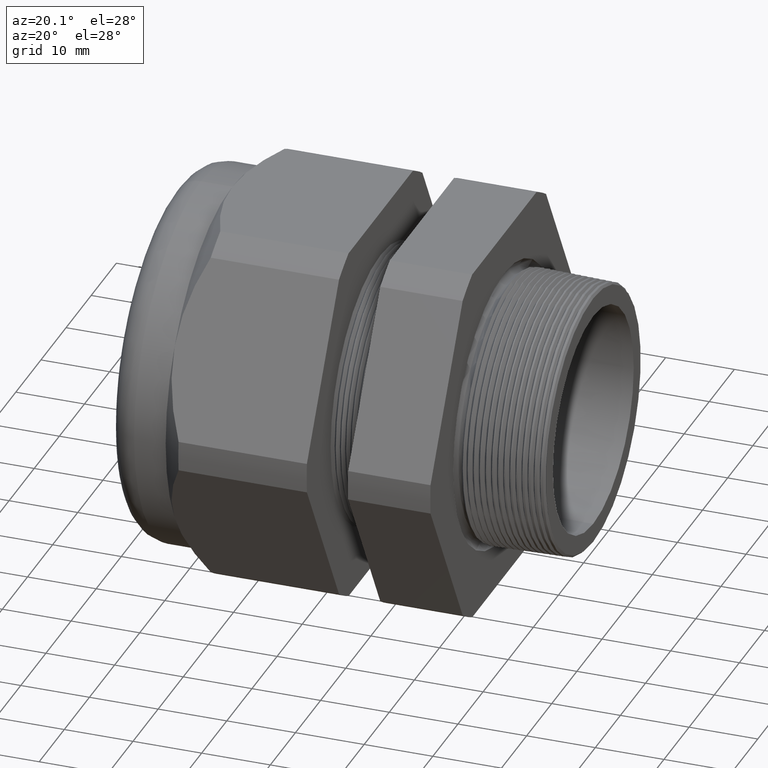
[diagram: clean part render]
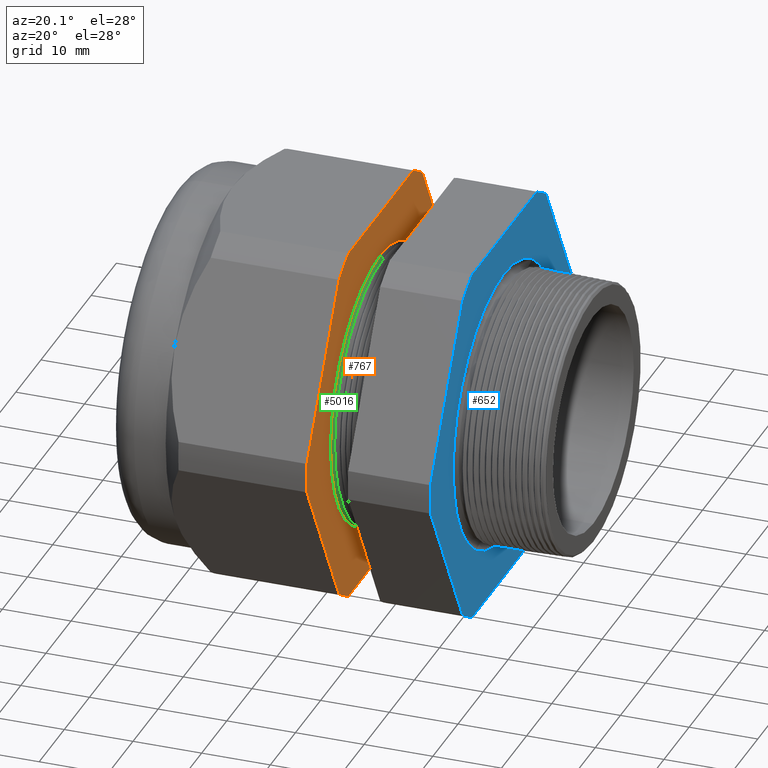
[diagram: same view with three faces highlighted in distinct colors, each labeled with its STEP entity id]
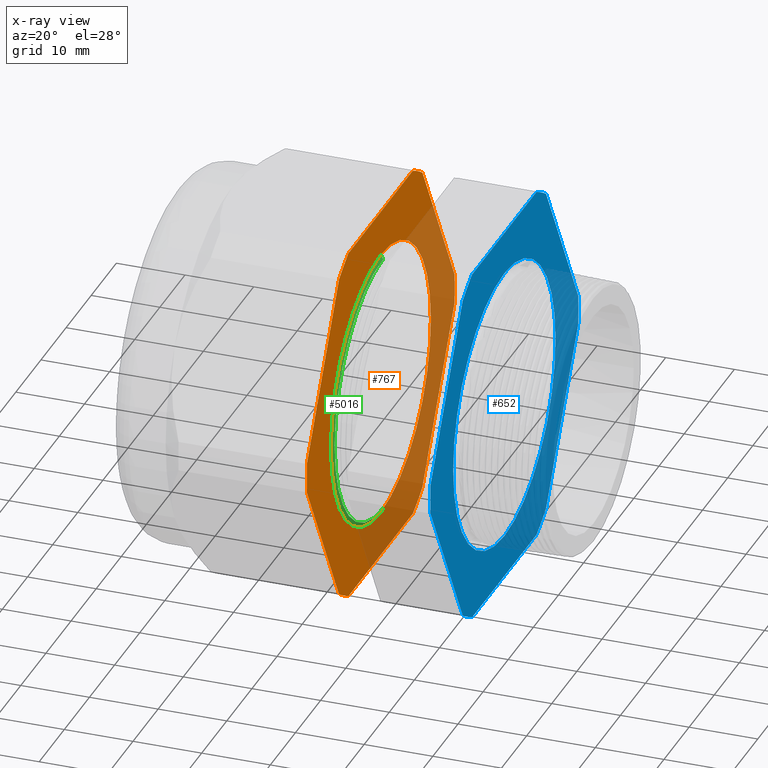
[diagram: x-ray of the same camera — body ghosted, the three highlighted faces saturated]
A machine part, auxiliary view with three faces highlighted in distinct colors.
The next image is the same camera in x-ray (body ghosted, the three faces saturated) — at least one of them is partly hidden behind the body in this view.
Their STEP definitions:

[orange] entity #767 — the highlighted planar face has unit normal (1, 0, 0).
#659 = EDGE_CURVE ( 'NONE', #673, #684, #2069, .T. ) ;
#665 = EDGE_CURVE ( 'NONE', #5097, #5134, #2097, .T. ) ;
#673 = VERTEX_POINT ( 'NONE', #2130 ) ;
#681 = EDGE_CURVE ( 'NONE', #684, #5097, #2103, .T. ) ;
#684 = VERTEX_POINT ( 'NONE', #2098 ) ;
#763 = EDGE_LOOP ( 'NONE', ( #4890, #4888 ) ) ;
#767 = ADVANCED_FACE ( 'NONE', ( #2319, #2318 ), #2324, .T. ) ;
#785 = EDGE_CURVE ( 'NONE', #5306, #673, #2347, .T. ) ;
#2066 = DIRECTION ( 'NONE',  ( 0.0000000000000000000, -0.5000000000000001100, 0.8660254037844384900 ) ) ;
#2067 = VECTOR ( 'NONE', #2066, 39.37007874015748900 ) ;
#2068 = CARTESIAN_POINT ( 'NONE',  ( -1.018802799999999800, 1.101246546954738800, 0.1825850290146080200 ) ) ;
#2069 = LINE ( 'NONE', #2068, #2067 ) ;
#2094 = DIRECTION ( 'NONE',  ( 0.0000000000000000000, -1.000000000000000000, 0.0000000000000000000 ) ) ;
#2095 = VECTOR ( 'NONE', #2094, 39.37007874015748100 ) ;
#2096 = CARTESIAN_POINT ( 'NONE',  ( -1.018802799999999800, 0.7850000000000001400, 1.044999999999999700 ) ) ;
#2097 = LINE ( 'NONE', #2096, #2095 ) ;
#2098 = CARTESIAN_POINT ( 'NONE',  ( -1.018802799999999800, 0.6532729870224193200, 0.9584979952648862200 ) ) ;
#2099 = DIRECTION ( 'NONE',  ( 0.0000000000000000000, 0.0000000000000000000, -1.000000000000000000 ) ) ;
#2100 = DIRECTION ( 'NONE',  ( 1.000000000000000000, 0.0000000000000000000, 0.0000000000000000000 ) ) ;
#2101 = CARTESIAN_POINT ( 'NONE',  ( -1.018802799999999800, 0.0000000000000000000, 0.0000000000000000000 ) ) ;
#2102 = AXIS2_PLACEMENT_3D ( 'NONE', #2101, #2100, #2099 ) ;
#2103 = CIRCLE ( 'NONE', #2102, 1.159950000000000000 ) ;
#2130 = CARTESIAN_POINT ( 'NONE',  ( -1.018802799999999800, 1.156720106887057600, 0.08650200473511426800 ) ) ;
#2314 = DIRECTION ( 'NONE',  ( 0.0000000000000000000, 0.0000000000000000000, -1.000000000000000000 ) ) ;
#2315 = DIRECTION ( 'NONE',  ( 1.000000000000000000, 0.0000000000000000000, 0.0000000000000000000 ) ) ;
#2316 = CARTESIAN_POINT ( 'NONE',  ( -1.018802799999999800, 0.7850000000000001400, 0.0000000000000000000 ) ) ;
#2317 = AXIS2_PLACEMENT_3D ( 'NONE', #2316, #2315, #2314 ) ;
#2318 = FACE_OUTER_BOUND ( 'NONE', #4903, .T. ) ;
#2319 = FACE_BOUND ( 'NONE', #763, .T. ) ;
#2324 = PLANE ( 'NONE',  #2317 ) ;
#2343 = DIRECTION ( 'NONE',  ( 0.0000000000000000000, 0.0000000000000000000, -1.000000000000000000 ) ) ;
#2344 = DIRECTION ( 'NONE',  ( 1.000000000000000000, 0.0000000000000000000, 0.0000000000000000000 ) ) ;
#2345 = CARTESIAN_POINT ( 'NONE',  ( -1.018802799999999800, 0.0000000000000000000, 0.0000000000000000000 ) ) ;
#2346 = AXIS2_PLACEMENT_3D ( 'NONE', #2345, #2344, #2343 ) ;
#2347 = CIRCLE ( 'NONE', #2346, 1.159950000000000000 ) ;
#2942 = CARTESIAN_POINT ( 'NONE',  ( -1.018802799999999800, 0.0000000000000000000, 0.0000000000000000000 ) ) ;
#2943 = AXIS2_PLACEMENT_3D ( 'NONE', #2942, #3203, #3453 ) ;
#3045 = CARTESIAN_POINT ( 'NONE',  ( -1.018802799999999800, 9.613477373306724800E-017, -0.7850000000000001400 ) ) ;
#3047 = DIRECTION ( 'NONE',  ( 0.0000000000000000000, 0.0000000000000000000, -1.000000000000000000 ) ) ;
#3048 = DIRECTION ( 'NONE',  ( 1.000000000000000000, 0.0000000000000000000, 0.0000000000000000000 ) ) ;
#3049 = CARTESIAN_POINT ( 'NONE',  ( -1.018802799999999800, 0.0000000000000000000, 0.0000000000000000000 ) ) ;
#3050 = AXIS2_PLACEMENT_3D ( 'NONE', #3049, #3048, #3047 ) ;
#3051 = CIRCLE ( 'NONE', #3050, 0.7850000000000001400 ) ;
#3052 = CARTESIAN_POINT ( 'NONE',  ( -1.018802799999999800, 0.0000000000000000000, 0.7850000000000001400 ) ) ;
#3098 = DIRECTION ( 'NONE',  ( 0.0000000000000000000, 0.0000000000000000000, -1.000000000000000000 ) ) ;
#3099 = DIRECTION ( 'NONE',  ( 1.000000000000000000, 0.0000000000000000000, 0.0000000000000000000 ) ) ;
#3100 = AXIS2_PLACEMENT_3D ( 'NONE', #3108, #3099, #3098 ) ;
#3101 = CIRCLE ( 'NONE', #3100, 0.7850000000000001400 ) ;
#3108 = CARTESIAN_POINT ( 'NONE',  ( -1.018802799999999800, 0.0000000000000000000, 0.0000000000000000000 ) ) ;
#3203 = DIRECTION ( 'NONE',  ( 1.000000000000000000, 0.0000000000000000000, 0.0000000000000000000 ) ) ;
#3271 = DIRECTION ( 'NONE',  ( 0.0000000000000000000, 1.000000000000000000, 0.0000000000000000000 ) ) ;
#3272 = VECTOR ( 'NONE', #3271, 39.37007874015748100 ) ;
#3273 = CARTESIAN_POINT ( 'NONE',  ( -1.018802799999999800, 0.7850000000000001400, -1.045000000000000200 ) ) ;
#3277 = LINE ( 'NONE', #3273, #3272 ) ;
#3306 = CARTESIAN_POINT ( 'NONE',  ( -1.018802799999999800, -1.156720106887057800, -0.08650200473511342200 ) ) ;
#3335 = CARTESIAN_POINT ( 'NONE',  ( -1.018802799999999800, -1.156720106887058100, 0.08650200473511256100 ) ) ;
#3341 = DIRECTION ( 'NONE',  ( 0.0000000000000000000, 0.0000000000000000000, -1.000000000000000000 ) ) ;
#3342 = DIRECTION ( 'NONE',  ( 1.000000000000000000, 0.0000000000000000000, 0.0000000000000000000 ) ) ;
#3343 = CARTESIAN_POINT ( 'NONE',  ( -1.018802799999999800, 0.0000000000000000000, 0.0000000000000000000 ) ) ;
#3344 = AXIS2_PLACEMENT_3D ( 'NONE', #3343, #3342, #3341 ) ;
#3345 = CIRCLE ( 'NONE', #3344, 1.159950000000000000 ) ;
#3346 = DIRECTION ( 'NONE',  ( 0.0000000000000000000, 0.0000000000000000000, -1.000000000000000000 ) ) ;
#3347 = DIRECTION ( 'NONE',  ( 1.000000000000000000, 0.0000000000000000000, 0.0000000000000000000 ) ) ;
#3348 = CARTESIAN_POINT ( 'NONE',  ( -1.018802799999999800, 0.0000000000000000000, 0.0000000000000000000 ) ) ;
#3349 = AXIS2_PLACEMENT_3D ( 'NONE', #3348, #3347, #3346 ) ;
#3350 = CIRCLE ( 'NONE', #3349, 1.159950000000000000 ) ;
#3367 = DIRECTION ( 'NONE',  ( 0.0000000000000000000, -0.4999999999999995600, -0.8660254037844388200 ) ) ;
#3368 = VECTOR ( 'NONE', #3367, 39.37007874015748900 ) ;
#3369 = CARTESIAN_POINT ( 'NONE',  ( -1.018802799999999800, -0.7087465469547389300, 0.8624149709853915500 ) ) ;
#3370 = LINE ( 'NONE', #3369, #3368 ) ;
#3371 = DIRECTION ( 'NONE',  ( 0.0000000000000000000, 0.5000000000000001100, -0.8660254037844384900 ) ) ;
#3372 = VECTOR ( 'NONE', #3371, 39.37007874015748900 ) ;
#3373 = CARTESIAN_POINT ( 'NONE',  ( -1.018802799999999800, -0.7087465469547383800, -0.8624149709853926600 ) ) ;
#3374 = LINE ( 'NONE', #3373, #3372 ) ;
#3426 = CARTESIAN_POINT ( 'NONE',  ( -1.018802799999999800, -0.6532729870224192000, 0.9584979952648864400 ) ) ;
#3446 = CIRCLE ( 'NONE', #2943, 1.159950000000000000 ) ;
#3453 = DIRECTION ( 'NONE',  ( 0.0000000000000000000, 0.0000000000000000000, -1.000000000000000000 ) ) ;
#3468 = CARTESIAN_POINT ( 'NONE',  ( -1.018802799999999800, 0.5034471198646395300, 1.044999999999999700 ) ) ;
#3525 = CARTESIAN_POINT ( 'NONE',  ( -1.018802799999999800, -0.5034471198646400800, 1.044999999999999300 ) ) ;
#3865 = CARTESIAN_POINT ( 'NONE',  ( -1.018802799999999800, 0.5034471198646384100, -1.045000000000000200 ) ) ;
#3866 = DIRECTION ( 'NONE',  ( 0.0000000000000000000, 0.5000000000000001100, 0.8660254037844386000 ) ) ;
#3867 = VECTOR ( 'NONE', #3866, 39.37007874015748900 ) ;
#3868 = CARTESIAN_POINT ( 'NONE',  ( -1.018802799999999800, 1.101246546954738600, -0.1825850290146078800 ) ) ;
#3869 = LINE ( 'NONE', #3868, #3867 ) ;
#3870 = CARTESIAN_POINT ( 'NONE',  ( -1.018802799999999800, 0.6532729870224192000, -0.9584979952648862200 ) ) ;
#3881 = CARTESIAN_POINT ( 'NONE',  ( -1.018802799999999800, 1.156720106887057800, -0.08650200473511369900 ) ) ;
#3908 = CARTESIAN_POINT ( 'NONE',  ( -1.018802799999999800, -0.5034471198646387500, -1.045000000000000200 ) ) ;
#3929 = CARTESIAN_POINT ( 'NONE',  ( -1.018802799999999800, -0.6532729870224186500, -0.9584979952648867700 ) ) ;
#3945 = DIRECTION ( 'NONE',  ( 0.0000000000000000000, 0.0000000000000000000, -1.000000000000000000 ) ) ;
#3946 = DIRECTION ( 'NONE',  ( 1.000000000000000000, 0.0000000000000000000, 0.0000000000000000000 ) ) ;
#3947 = CARTESIAN_POINT ( 'NONE',  ( -1.018802799999999800, 0.0000000000000000000, 0.0000000000000000000 ) ) ;
#3948 = AXIS2_PLACEMENT_3D ( 'NONE', #3947, #3946, #3945 ) ;
#3949 = CIRCLE ( 'NONE', #3948, 1.159949999999999800 ) ;
#4845 = VERTEX_POINT ( 'NONE', #3052 ) ;
#4846 = EDGE_CURVE ( 'NONE', #4851, #4845, #3051, .T. ) ;
#4851 = VERTEX_POINT ( 'NONE', #3045 ) ;
#4884 = ORIENTED_EDGE ( 'NONE', *, *, #5312, .T. ) ;
#4888 = ORIENTED_EDGE ( 'NONE', *, *, #4846, .F. ) ;
#4890 = ORIENTED_EDGE ( 'NONE', *, *, #4904, .F. ) ;
#4891 = ORIENTED_EDGE ( 'NONE', *, *, #665, .T. ) ;
#4892 = ORIENTED_EDGE ( 'NONE', *, *, #681, .T. ) ;
#4894 = ORIENTED_EDGE ( 'NONE', *, *, #785, .T. ) ;
#4896 = ORIENTED_EDGE ( 'NONE', *, *, #5111, .T. ) ;
#4900 = ORIENTED_EDGE ( 'NONE', *, *, #5334, .T. ) ;
#4901 = ORIENTED_EDGE ( 'NONE', *, *, #5061, .T. ) ;
#4902 = ORIENTED_EDGE ( 'NONE', *, *, #659, .T. ) ;
#4903 = EDGE_LOOP ( 'NONE', ( #4884, #4894, #4902, #4892, #4891, #4896, #4901, #4907, #4911, #4905, #4909, #4900 ) ) ;
#4904 = EDGE_CURVE ( 'NONE', #4845, #4851, #3101, .T. ) ;
#4905 = ORIENTED_EDGE ( 'NONE', *, *, #5040, .T. ) ;
#4907 = ORIENTED_EDGE ( 'NONE', *, *, #5041, .T. ) ;
#4909 = ORIENTED_EDGE ( 'NONE', *, *, #5020, .T. ) ;
#4911 = ORIENTED_EDGE ( 'NONE', *, *, #5059, .T. ) ;
#5020 = EDGE_CURVE ( 'NONE', #5326, #5313, #3277, .T. ) ;
#5029 = VERTEX_POINT ( 'NONE', #3306 ) ;
#5040 = EDGE_CURVE ( 'NONE', #5342, #5326, #3350, .T. ) ;
#5041 = EDGE_CURVE ( 'NONE', #5046, #5029, #3345, .T. ) ;
#5046 = VERTEX_POINT ( 'NONE', #3335 ) ;
#5059 = EDGE_CURVE ( 'NONE', #5029, #5342, #3374, .T. ) ;
#5061 = EDGE_CURVE ( 'NONE', #5088, #5046, #3370, .T. ) ;
#5088 = VERTEX_POINT ( 'NONE', #3426 ) ;
#5097 = VERTEX_POINT ( 'NONE', #3468 ) ;
#5111 = EDGE_CURVE ( 'NONE', #5134, #5088, #3446, .T. ) ;
#5134 = VERTEX_POINT ( 'NONE', #3525 ) ;
#5306 = VERTEX_POINT ( 'NONE', #3881 ) ;
#5310 = VERTEX_POINT ( 'NONE', #3870 ) ;
#5312 = EDGE_CURVE ( 'NONE', #5310, #5306, #3869, .T. ) ;
#5313 = VERTEX_POINT ( 'NONE', #3865 ) ;
#5326 = VERTEX_POINT ( 'NONE', #3908 ) ;
#5334 = EDGE_CURVE ( 'NONE', #5313, #5310, #3949, .T. ) ;
#5342 = VERTEX_POINT ( 'NONE', #3929 ) ;

[blue] entity #652 — the highlighted planar face has unit normal (1, 0, 0).
#517 = VERTEX_POINT ( 'NONE', #1796 ) ;
#520 = VERTEX_POINT ( 'NONE', #1795 ) ;
#521 = EDGE_CURVE ( 'NONE', #520, #517, #1853, .T. ) ;
#567 = VERTEX_POINT ( 'NONE', #1900 ) ;
#580 = ORIENTED_EDGE ( 'NONE', *, *, #521, .F. ) ;
#603 = ORIENTED_EDGE ( 'NONE', *, *, #705, .T. ) ;
#630 = ORIENTED_EDGE ( 'NONE', *, *, #720, .T. ) ;
#634 = VERTEX_POINT ( 'NONE', #1986 ) ;
#636 = ORIENTED_EDGE ( 'NONE', *, *, #642, .T. ) ;
#637 = VERTEX_POINT ( 'NONE', #1981 ) ;
#638 = VERTEX_POINT ( 'NONE', #1980 ) ;
#639 = ORIENTED_EDGE ( 'NONE', *, *, #643, .T. ) ;
#640 = VERTEX_POINT ( 'NONE', #1979 ) ;
#641 = EDGE_CURVE ( 'NONE', #640, #567, #2042, .T. ) ;
#642 = EDGE_CURVE ( 'NONE', #637, #638, #2038, .T. ) ;
#643 = EDGE_CURVE ( 'NONE', #638, #640, #2034, .T. ) ;
#644 = ORIENTED_EDGE ( 'NONE', *, *, #641, .T. ) ;
#645 = EDGE_LOOP ( 'NONE', ( #636, #639, #644, #603, #711, #703, #710, #702, #724, #630, #717, #721 ) ) ;
#646 = EDGE_LOOP ( 'NONE', ( #651, #580 ) ) ;
#647 = EDGE_CURVE ( 'NONE', #517, #520, #2029, .T. ) ;
#651 = ORIENTED_EDGE ( 'NONE', *, *, #647, .F. ) ;
#652 = ADVANCED_FACE ( 'NONE', ( #2017, #2016 ), #2015, .T. ) ;
#653 = VERTEX_POINT ( 'NONE', #2010 ) ;
#700 = EDGE_CURVE ( 'NONE', #709, #653, #2145, .T. ) ;
#701 = VERTEX_POINT ( 'NONE', #2140 ) ;
#702 = ORIENTED_EDGE ( 'NONE', *, *, #700, .T. ) ;
#703 = ORIENTED_EDGE ( 'NONE', *, *, #706, .T. ) ;
#704 = EDGE_CURVE ( 'NONE', #712, #709, #2139, .T. ) ;
#705 = EDGE_CURVE ( 'NONE', #567, #708, #2135, .T. ) ;
#706 = EDGE_CURVE ( 'NONE', #701, #712, #2192, .T. ) ;
#707 = EDGE_CURVE ( 'NONE', #708, #701, #2187, .T. ) ;
#708 = VERTEX_POINT ( 'NONE', #2182 ) ;
#709 = VERTEX_POINT ( 'NONE', #2181 ) ;
#710 = ORIENTED_EDGE ( 'NONE', *, *, #704, .T. ) ;
#711 = ORIENTED_EDGE ( 'NONE', *, *, #707, .T. ) ;
#712 = VERTEX_POINT ( 'NONE', #2180 ) ;
#714 = VERTEX_POINT ( 'NONE', #2175 ) ;
#715 = EDGE_CURVE ( 'NONE', #716, #714, #2174, .T. ) ;
#716 = VERTEX_POINT ( 'NONE', #2170 ) ;
#717 = ORIENTED_EDGE ( 'NONE', *, *, #715, .T. ) ;
#719 = EDGE_CURVE ( 'NONE', #714, #637, #824, .T. ) ;
#720 = EDGE_CURVE ( 'NONE', #634, #716, #2224, .T. ) ;
#721 = ORIENTED_EDGE ( 'NONE', *, *, #719, .T. ) ;
#724 = ORIENTED_EDGE ( 'NONE', *, *, #725, .T. ) ;
#725 = EDGE_CURVE ( 'NONE', #653, #634, #2214, .T. ) ;
#824 = CIRCLE ( 'NONE', #825, 1.159949999999999800 ) ;
#825 = AXIS2_PLACEMENT_3D ( 'NONE', #827, #826, #834 ) ;
#826 = DIRECTION ( 'NONE',  ( 1.000000000000000000, 0.0000000000000000000, 0.0000000000000000000 ) ) ;
#827 = CARTESIAN_POINT ( 'NONE',  ( -0.3100000000000000000, 0.0000000000000000000, 0.0000000000000000000 ) ) ;
#834 = DIRECTION ( 'NONE',  ( 0.0000000000000000000, 0.0000000000000000000, -1.000000000000000000 ) ) ;
#1795 = CARTESIAN_POINT ( 'NONE',  ( -0.3100000000000000000, 9.810405007208756900E-017, 0.8010803616225626900 ) ) ;
#1796 = CARTESIAN_POINT ( 'NONE',  ( -0.3100000000000000000, 0.0000000000000000000, -0.8010803616225626900 ) ) ;
#1849 = DIRECTION ( 'NONE',  ( 0.0000000000000000000, 0.0000000000000000000, -1.000000000000000000 ) ) ;
#1850 = DIRECTION ( 'NONE',  ( 1.000000000000000000, 0.0000000000000000000, 0.0000000000000000000 ) ) ;
#1851 = CARTESIAN_POINT ( 'NONE',  ( -0.3100000000000000000, 0.0000000000000000000, 0.0000000000000000000 ) ) ;
#1852 = AXIS2_PLACEMENT_3D ( 'NONE', #1851, #1850, #1849 ) ;
#1853 = CIRCLE ( 'NONE', #1852, 0.8010803616225626900 ) ;
#1900 = CARTESIAN_POINT ( 'NONE',  ( -0.3100000000000000000, 0.6532729870224193200, 0.9584979952648862200 ) ) ;
#1979 = CARTESIAN_POINT ( 'NONE',  ( -0.3100000000000000000, 1.156720106887057600, 0.08650200473511426800 ) ) ;
#1980 = CARTESIAN_POINT ( 'NONE',  ( -0.3100000000000000000, 1.156720106887057800, -0.08650200473511371300 ) ) ;
#1981 = CARTESIAN_POINT ( 'NONE',  ( -0.3100000000000000000, 0.6532729870224192000, -0.9584979952648862200 ) ) ;
#1986 = CARTESIAN_POINT ( 'NONE',  ( -0.3100000000000000000, -0.6532729870224186500, -0.9584979952648867700 ) ) ;
#2010 = CARTESIAN_POINT ( 'NONE',  ( -0.3100000000000000000, -1.156720106887057800, -0.08650200473511342200 ) ) ;
#2011 = DIRECTION ( 'NONE',  ( 0.0000000000000000000, 0.0000000000000000000, -1.000000000000000000 ) ) ;
#2012 = DIRECTION ( 'NONE',  ( 1.000000000000000000, 0.0000000000000000000, 0.0000000000000000000 ) ) ;
#2013 = CARTESIAN_POINT ( 'NONE',  ( -0.3100000000000000000, 2.089999999999999900, 0.0000000000000000000 ) ) ;
#2014 = AXIS2_PLACEMENT_3D ( 'NONE', #2013, #2012, #2011 ) ;
#2015 = PLANE ( 'NONE',  #2014 ) ;
#2016 = FACE_OUTER_BOUND ( 'NONE', #645, .T. ) ;
#2017 = FACE_BOUND ( 'NONE', #646, .T. ) ;
#2025 = DIRECTION ( 'NONE',  ( 0.0000000000000000000, 0.0000000000000000000, -1.000000000000000000 ) ) ;
#2026 = DIRECTION ( 'NONE',  ( 1.000000000000000000, 0.0000000000000000000, 0.0000000000000000000 ) ) ;
#2027 = CARTESIAN_POINT ( 'NONE',  ( -0.3100000000000000000, 0.0000000000000000000, 0.0000000000000000000 ) ) ;
#2028 = AXIS2_PLACEMENT_3D ( 'NONE', #2027, #2026, #2025 ) ;
#2029 = CIRCLE ( 'NONE', #2028, 0.8010803616225626900 ) ;
#2030 = DIRECTION ( 'NONE',  ( 0.0000000000000000000, 0.0000000000000000000, -1.000000000000000000 ) ) ;
#2031 = DIRECTION ( 'NONE',  ( 1.000000000000000000, 0.0000000000000000000, 0.0000000000000000000 ) ) ;
#2032 = CARTESIAN_POINT ( 'NONE',  ( -0.3100000000000000000, 0.0000000000000000000, 0.0000000000000000000 ) ) ;
#2033 = AXIS2_PLACEMENT_3D ( 'NONE', #2032, #2031, #2030 ) ;
#2034 = CIRCLE ( 'NONE', #2033, 1.159950000000000000 ) ;
#2035 = DIRECTION ( 'NONE',  ( 0.0000000000000000000, 0.5000000000000001100, 0.8660254037844386000 ) ) ;
#2036 = VECTOR ( 'NONE', #2035, 39.37007874015748900 ) ;
#2037 = CARTESIAN_POINT ( 'NONE',  ( -0.3100000000000000000, 1.427496546954738500, 0.3824965469547383400 ) ) ;
#2038 = LINE ( 'NONE', #2037, #2036 ) ;
#2039 = DIRECTION ( 'NONE',  ( 0.0000000000000000000, -0.5000000000000001100, 0.8660254037844384900 ) ) ;
#2040 = VECTOR ( 'NONE', #2039, 39.37007874015748900 ) ;
#2041 = CARTESIAN_POINT ( 'NONE',  ( -0.3100000000000000000, 1.427496546954738900, -0.3824965469547382800 ) ) ;
#2042 = LINE ( 'NONE', #2041, #2040 ) ;
#2134 = AXIS2_PLACEMENT_3D ( 'NONE', #2195, #2194, #2193 ) ;
#2135 = CIRCLE ( 'NONE', #2134, 1.159950000000000000 ) ;
#2136 = DIRECTION ( 'NONE',  ( 0.0000000000000000000, -0.4999999999999995600, -0.8660254037844388200 ) ) ;
#2137 = VECTOR ( 'NONE', #2136, 39.37007874015748900 ) ;
#2138 = CARTESIAN_POINT ( 'NONE',  ( -0.3100000000000000000, -0.3824965469547395000, 1.427496546954737600 ) ) ;
#2139 = LINE ( 'NONE', #2138, #2137 ) ;
#2140 = CARTESIAN_POINT ( 'NONE',  ( -0.3100000000000000000, -0.5034471198646400800, 1.044999999999999300 ) ) ;
#2141 = DIRECTION ( 'NONE',  ( 0.0000000000000000000, 0.0000000000000000000, -1.000000000000000000 ) ) ;
#2142 = DIRECTION ( 'NONE',  ( 1.000000000000000000, 0.0000000000000000000, 0.0000000000000000000 ) ) ;
#2143 = CARTESIAN_POINT ( 'NONE',  ( -0.3100000000000000000, 0.0000000000000000000, 0.0000000000000000000 ) ) ;
#2144 = AXIS2_PLACEMENT_3D ( 'NONE', #2143, #2142, #2141 ) ;
#2145 = CIRCLE ( 'NONE', #2144, 1.159950000000000000 ) ;
#2170 = CARTESIAN_POINT ( 'NONE',  ( -0.3100000000000000000, -0.5034471198646387500, -1.045000000000000200 ) ) ;
#2171 = DIRECTION ( 'NONE',  ( 0.0000000000000000000, 1.000000000000000000, 0.0000000000000000000 ) ) ;
#2172 = VECTOR ( 'NONE', #2171, 39.37007874015748100 ) ;
#2173 = CARTESIAN_POINT ( 'NONE',  ( -0.3100000000000000000, 2.089999999999999900, -1.045000000000000200 ) ) ;
#2174 = LINE ( 'NONE', #2173, #2172 ) ;
#2175 = CARTESIAN_POINT ( 'NONE',  ( -0.3100000000000000000, 0.5034471198646384100, -1.045000000000000200 ) ) ;
#2180 = CARTESIAN_POINT ( 'NONE',  ( -0.3100000000000000000, -0.6532729870224192000, 0.9584979952648864400 ) ) ;
#2181 = CARTESIAN_POINT ( 'NONE',  ( -0.3100000000000000000, -1.156720106887058100, 0.08650200473511256100 ) ) ;
#2182 = CARTESIAN_POINT ( 'NONE',  ( -0.3100000000000000000, 0.5034471198646395300, 1.044999999999999700 ) ) ;
#2183 = DIRECTION ( 'NONE',  ( 0.0000000000000000000, -1.000000000000000000, 0.0000000000000000000 ) ) ;
#2184 = VECTOR ( 'NONE', #2183, 39.37007874015748100 ) ;
#2185 = CARTESIAN_POINT ( 'NONE',  ( -0.3100000000000000000, 2.089999999999999900, 1.044999999999999700 ) ) ;
#2187 = LINE ( 'NONE', #2185, #2184 ) ;
#2188 = DIRECTION ( 'NONE',  ( 0.0000000000000000000, 0.0000000000000000000, -1.000000000000000000 ) ) ;
#2189 = DIRECTION ( 'NONE',  ( 1.000000000000000000, 0.0000000000000000000, 0.0000000000000000000 ) ) ;
#2190 = CARTESIAN_POINT ( 'NONE',  ( -0.3100000000000000000, 0.0000000000000000000, 0.0000000000000000000 ) ) ;
#2191 = AXIS2_PLACEMENT_3D ( 'NONE', #2190, #2189, #2188 ) ;
#2192 = CIRCLE ( 'NONE', #2191, 1.159950000000000000 ) ;
#2193 = DIRECTION ( 'NONE',  ( 0.0000000000000000000, 0.0000000000000000000, -1.000000000000000000 ) ) ;
#2194 = DIRECTION ( 'NONE',  ( 1.000000000000000000, 0.0000000000000000000, 0.0000000000000000000 ) ) ;
#2195 = CARTESIAN_POINT ( 'NONE',  ( -0.3100000000000000000, 0.0000000000000000000, 0.0000000000000000000 ) ) ;
#2211 = DIRECTION ( 'NONE',  ( 0.0000000000000000000, 0.5000000000000001100, -0.8660254037844384900 ) ) ;
#2212 = VECTOR ( 'NONE', #2211, 39.37007874015748900 ) ;
#2213 = CARTESIAN_POINT ( 'NONE',  ( -0.3100000000000000000, -0.3824965469547378400, -1.427496546954738500 ) ) ;
#2214 = LINE ( 'NONE', #2213, #2212 ) ;
#2220 = DIRECTION ( 'NONE',  ( 0.0000000000000000000, 0.0000000000000000000, -1.000000000000000000 ) ) ;
#2221 = DIRECTION ( 'NONE',  ( 1.000000000000000000, 0.0000000000000000000, 0.0000000000000000000 ) ) ;
#2222 = CARTESIAN_POINT ( 'NONE',  ( -0.3100000000000000000, 0.0000000000000000000, 0.0000000000000000000 ) ) ;
#2223 = AXIS2_PLACEMENT_3D ( 'NONE', #2222, #2221, #2220 ) ;
#2224 = CIRCLE ( 'NONE', #2223, 1.159950000000000000 ) ;

[green] entity #5016 — the highlighted conical surface has half-angle 61.5 deg.
#3015 = CARTESIAN_POINT ( 'NONE',  ( -1.005028413065895700, 0.0000000000000000000, 0.7596307351718083500 ) ) ;
#3016 = CARTESIAN_POINT ( 'NONE',  ( -1.005028413065895700, 9.458135428463890800E-017, -0.7596307351718083500 ) ) ;
#3041 = DIRECTION ( 'NONE',  ( -0.4771587602596191200, 1.076240564057387800E-016, -0.8788171126619595000 ) ) ;
#3042 = VECTOR ( 'NONE', #3041, 39.37007874015748100 ) ;
#3043 = CARTESIAN_POINT ( 'NONE',  ( -1.018802799999999800, 9.613477373306724800E-017, -0.7850000000000001400 ) ) ;
#3044 = LINE ( 'NONE', #3043, #3042 ) ;
#3045 = CARTESIAN_POINT ( 'NONE',  ( -1.018802799999999800, 9.613477373306724800E-017, -0.7850000000000001400 ) ) ;
#3052 = CARTESIAN_POINT ( 'NONE',  ( -1.018802799999999800, 0.0000000000000000000, 0.7850000000000001400 ) ) ;
#3098 = DIRECTION ( 'NONE',  ( 0.0000000000000000000, 0.0000000000000000000, -1.000000000000000000 ) ) ;
#3099 = DIRECTION ( 'NONE',  ( 1.000000000000000000, 0.0000000000000000000, 0.0000000000000000000 ) ) ;
#3100 = AXIS2_PLACEMENT_3D ( 'NONE', #3108, #3099, #3098 ) ;
#3101 = CIRCLE ( 'NONE', #3100, 0.7850000000000001400 ) ;
#3108 = CARTESIAN_POINT ( 'NONE',  ( -1.018802799999999800, 0.0000000000000000000, 0.0000000000000000000 ) ) ;
#3119 = DIRECTION ( 'NONE',  ( -0.4771587602596191200, 0.0000000000000000000, 0.8788171126619595000 ) ) ;
#3120 = VECTOR ( 'NONE', #3119, 39.37007874015748100 ) ;
#3121 = CARTESIAN_POINT ( 'NONE',  ( -1.018802799999999800, 0.0000000000000000000, 0.7850000000000001400 ) ) ;
#3122 = LINE ( 'NONE', #3121, #3120 ) ;
#3274 = DIRECTION ( 'NONE',  ( 0.0000000000000000000, 0.0000000000000000000, 1.000000000000000000 ) ) ;
#3275 = DIRECTION ( 'NONE',  ( -1.000000000000000000, 0.0000000000000000000, 0.0000000000000000000 ) ) ;
#3276 = AXIS2_PLACEMENT_3D ( 'NONE', #3283, #3275, #3274 ) ;
#3278 = CONICAL_SURFACE ( 'NONE', #3276, 0.7850000000000001400, 1.073377489976500500 ) ;
#3279 = FACE_OUTER_BOUND ( 'NONE', #5316, .T. ) ;
#3283 = CARTESIAN_POINT ( 'NONE',  ( -1.018802799999999800, 0.0000000000000000000, 0.0000000000000000000 ) ) ;
#3821 = DIRECTION ( 'NONE',  ( 0.0000000000000000000, 0.0000000000000000000, -1.000000000000000000 ) ) ;
#3823 = DIRECTION ( 'NONE',  ( 1.000000000000000000, 0.0000000000000000000, 0.0000000000000000000 ) ) ;
#3824 = CARTESIAN_POINT ( 'NONE',  ( -1.005028413065895700, 0.0000000000000000000, 0.0000000000000000000 ) ) ;
#3825 = AXIS2_PLACEMENT_3D ( 'NONE', #3824, #3823, #3821 ) ;
#3826 = CIRCLE ( 'NONE', #3825, 0.7596307351718083500 ) ;
#4830 = VERTEX_POINT ( 'NONE', #3016 ) ;
#4831 = VERTEX_POINT ( 'NONE', #3015 ) ;
#4845 = VERTEX_POINT ( 'NONE', #3052 ) ;
#4851 = VERTEX_POINT ( 'NONE', #3045 ) ;
#4853 = EDGE_CURVE ( 'NONE', #4830, #4851, #3044, .T. ) ;
#4882 = EDGE_CURVE ( 'NONE', #4831, #4845, #3122, .T. ) ;
#4904 = EDGE_CURVE ( 'NONE', #4845, #4851, #3101, .T. ) ;
#5016 = ADVANCED_FACE ( 'NONE', ( #3279 ), #3278, .T. ) ;
#5265 = ORIENTED_EDGE ( 'NONE', *, *, #4882, .T. ) ;
#5266 = ORIENTED_EDGE ( 'NONE', *, *, #4904, .T. ) ;
#5273 = ORIENTED_EDGE ( 'NONE', *, *, #5279, .F. ) ;
#5279 = EDGE_CURVE ( 'NONE', #4831, #4830, #3826, .T. ) ;
#5315 = ORIENTED_EDGE ( 'NONE', *, *, #4853, .F. ) ;
#5316 = EDGE_LOOP ( 'NONE', ( #5315, #5273, #5265, #5266 ) ) ;